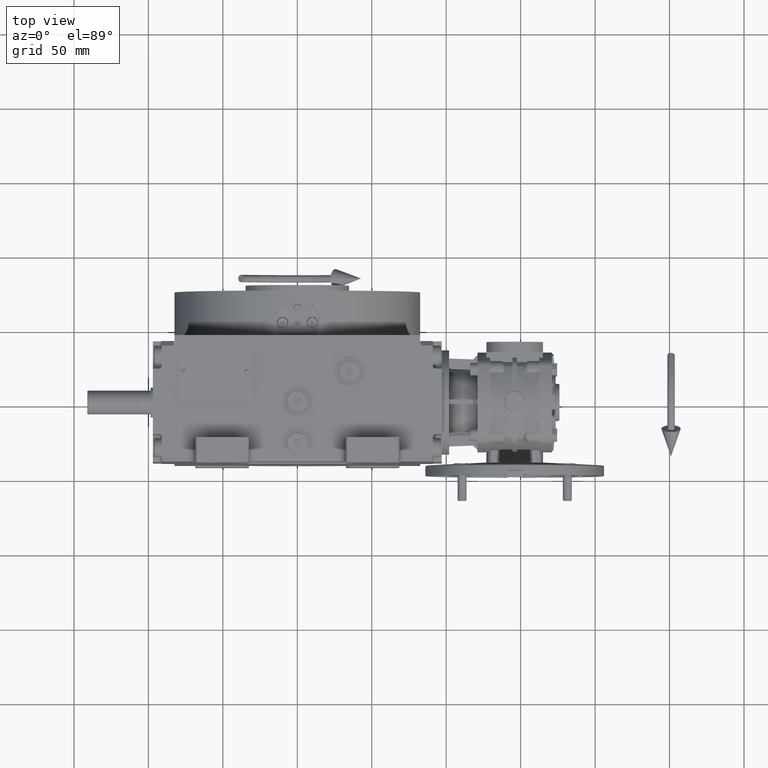
[diagram: clean part render]
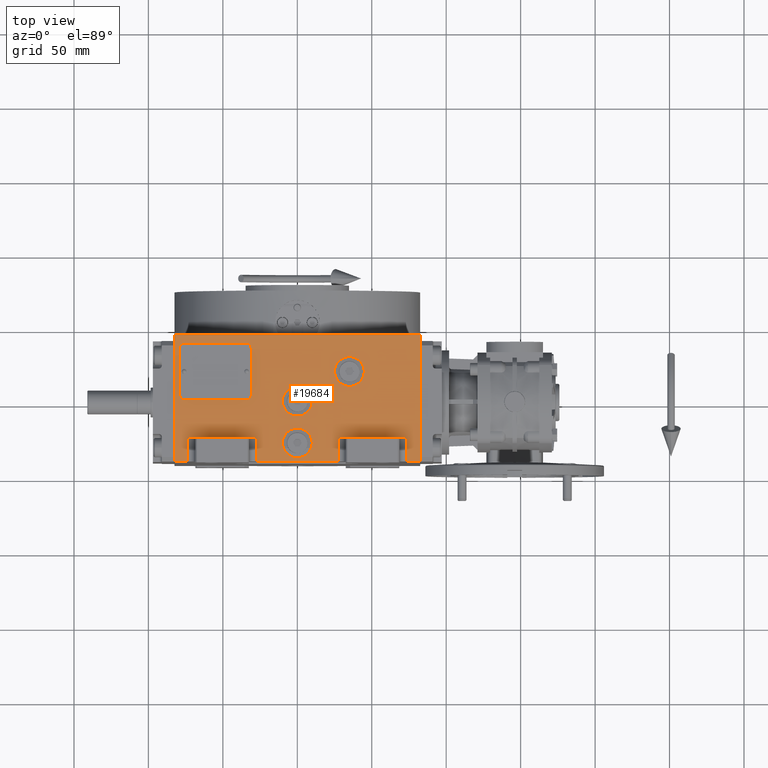
[diagram: same view with one face highlighted and labeled with its STEP entity id]
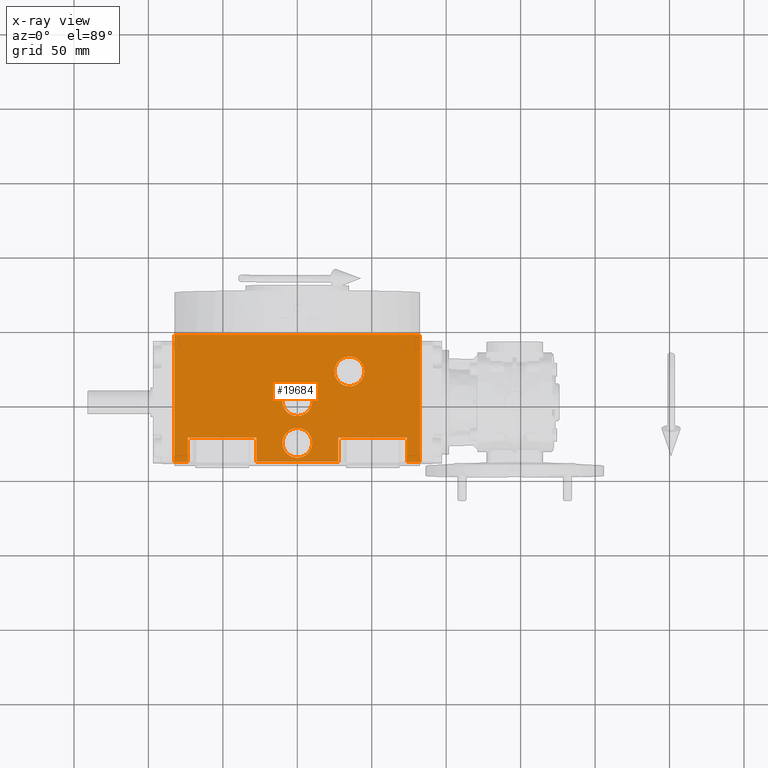
[diagram: x-ray of the same camera — body ghosted, the highlighted face saturated]
A machine part, top view. The second image highlights one B-rep face of the part: STEP entity #19684.
The next image is the same camera in x-ray: the body ghosted, the highlighted face saturated — about 0% of this face is hidden behind the body in this view.
In plain terms, the highlighted planar face has unit normal (0, 0, 1).
Its self-contained STEP definition (entity closure, byte-faithful):
#145 = EDGE_CURVE ( 'NONE', #74354, #4300, #1677, .T. ) ;
#854 = FACE_BOUND ( 'NONE', #50171, .T. ) ;
#1513 = CARTESIAN_POINT ( 'NONE',  ( -73.50000000000000000, -24.50000000000000000, 114.0000000000000000 ) ) ;
#1620 = DIRECTION ( 'NONE',  ( 0.000000000000000000, 1.000000000000000000, 0.000000000000000000 ) ) ;
#1677 = LINE ( 'NONE', #93088, #2878 ) ;
#1884 = EDGE_CURVE ( 'NONE', #30280, #95260, #39475, .T. ) ;
#1975 = ORIENTED_EDGE ( 'NONE', *, *, #86645, .T. ) ;
#2330 = CARTESIAN_POINT ( 'NONE',  ( 73.50000000000000000, -40.50000000000000000, 114.0000000000000000 ) ) ;
#2536 = CARTESIAN_POINT ( 'NONE',  ( 10.00000000000000000, -1.072081766451089851E-15, 114.0000000000000000 ) ) ;
#2878 = VECTOR ( 'NONE', #86659, 1000.000000000000000 ) ;
#2927 = EDGE_CURVE ( 'NONE', #30512, #56209, #3648, .T. ) ;
#2961 = LINE ( 'NONE', #9398, #57771 ) ;
#3648 = LINE ( 'NONE', #4623, #76831 ) ;
#4300 = VERTEX_POINT ( 'NONE', #31149 ) ;
#4623 = CARTESIAN_POINT ( 'NONE',  ( 73.50000000000000000, -40.50000000000000000, 114.0000000000000000 ) ) ;
#5507 = VECTOR ( 'NONE', #31658, 1000.000000000000000 ) ;
#6808 = ORIENTED_EDGE ( 'NONE', *, *, #90931, .F. ) ;
#7286 = CARTESIAN_POINT ( 'NONE',  ( 0.000000000000000000, -28.00000000000000000, 114.0000000000000000 ) ) ;
#7470 = LINE ( 'NONE', #37665, #71016 ) ;
#7536 = VERTEX_POINT ( 'NONE', #31584 ) ;
#8364 = DIRECTION ( 'NONE',  ( 0.000000000000000000, 0.000000000000000000, 1.000000000000000000 ) ) ;
#8905 = LINE ( 'NONE', #1513, #5507 ) ;
#9070 = CIRCLE ( 'NONE', #97503, 10.00000000000000000 ) ;
#9122 = VERTEX_POINT ( 'NONE', #2536 ) ;
#9398 = CARTESIAN_POINT ( 'NONE',  ( 27.49999999999934630, -24.50000000000000000, 114.0000000000000000 ) ) ;
#9956 = LINE ( 'NONE', #78654, #81301 ) ;
#10235 = CARTESIAN_POINT ( 'NONE',  ( 27.49999999999934630, -24.50000000000000000, 114.0000000000000000 ) ) ;
#11595 = LINE ( 'NONE', #12085, #57034 ) ;
#11804 = CARTESIAN_POINT ( 'NONE',  ( 0.000000000000000000, -8.881784197001250351E-16, 114.0000000000000000 ) ) ;
#12085 = CARTESIAN_POINT ( 'NONE',  ( -82.50000000000000000, 44.50000000000000000, 114.0000000000000000 ) ) ;
#12133 = VERTEX_POINT ( 'NONE', #77336 ) ;
#12497 = VECTOR ( 'NONE', #1620, 1000.000000000000000 ) ;
#13980 = CIRCLE ( 'NONE', #39297, 10.00000000000000178 ) ;
#14520 = EDGE_CURVE ( 'NONE', #7536, #40405, #11595, .T. ) ;
#15132 = CIRCLE ( 'NONE', #29393, 10.00000000000000000 ) ;
#16925 = CARTESIAN_POINT ( 'NONE',  ( 73.50000000000000000, -40.50000000000000000, 114.0000000000000000 ) ) ;
#18988 = ORIENTED_EDGE ( 'NONE', *, *, #23032, .F. ) ;
#19101 = CARTESIAN_POINT ( 'NONE',  ( 35.00000000000000000, 20.00000000000000000, 114.0000000000000000 ) ) ;
#19684 = ADVANCED_FACE ( 'NONE', ( #92263, #854, #24065, #61655 ), #53749, .T. ) ;
#20525 = ORIENTED_EDGE ( 'NONE', *, *, #65119, .T. ) ;
#20561 = EDGE_CURVE ( 'NONE', #88751, #7536, #9956, .T. ) ;
#21768 = VECTOR ( 'NONE', #53276, 1000.000000000000000 ) ;
#23032 = EDGE_CURVE ( 'NONE', #27347, #61440, #2961, .T. ) ;
#23119 = DIRECTION ( 'NONE',  ( 1.000000000000000000, 0.000000000000000000, 0.000000000000000000 ) ) ;
#24065 = FACE_BOUND ( 'NONE', #95943, .T. ) ;
#24245 = ORIENTED_EDGE ( 'NONE', *, *, #27132, .F. ) ;
#24431 = VERTEX_POINT ( 'NONE', #61947 ) ;
#25446 = VERTEX_POINT ( 'NONE', #90162 ) ;
#27132 = EDGE_CURVE ( 'NONE', #9122, #35884, #15132, .T. ) ;
#27309 = DIRECTION ( 'NONE',  ( -1.000000000000000000, -3.469446951953613696E-16, 0.000000000000000000 ) ) ;
#27347 = VERTEX_POINT ( 'NONE', #52381 ) ;
#27620 = DIRECTION ( 'NONE',  ( 0.000000000000000000, 0.000000000000000000, 1.000000000000000000 ) ) ;
#28608 = ORIENTED_EDGE ( 'NONE', *, *, #20561, .F. ) ;
#28834 = VECTOR ( 'NONE', #93281, 1000.000000000000000 ) ;
#28945 = EDGE_CURVE ( 'NONE', #12133, #96338, #9070, .T. ) ;
#29092 = EDGE_CURVE ( 'NONE', #24431, #4300, #60691, .T. ) ;
#29393 = AXIS2_PLACEMENT_3D ( 'NONE', #70755, #85551, #69781 ) ;
#30057 = CARTESIAN_POINT ( 'NONE',  ( -10.00000000000000000, -28.00000000000000000, 114.0000000000000000 ) ) ;
#30280 = VERTEX_POINT ( 'NONE', #50009 ) ;
#30512 = VERTEX_POINT ( 'NONE', #2330 ) ;
#31149 = CARTESIAN_POINT ( 'NONE',  ( -27.49999999999934630, -24.50000000000000000, 114.0000000000000000 ) ) ;
#31584 = CARTESIAN_POINT ( 'NONE',  ( -82.50000000000000000, 44.50000000000000000, 114.0000000000000000 ) ) ;
#31658 = DIRECTION ( 'NONE',  ( 0.000000000000000000, -1.000000000000000000, 0.000000000000000000 ) ) ;
#32711 = EDGE_CURVE ( 'NONE', #30512, #25446, #60460, .T. ) ;
#33660 = EDGE_CURVE ( 'NONE', #27347, #25446, #40427, .T. ) ;
#35163 = CARTESIAN_POINT ( 'NONE',  ( -27.49999999999934630, -40.50000000000000000, 114.0000000000000000 ) ) ;
#35884 = VERTEX_POINT ( 'NONE', #86460 ) ;
#35973 = ORIENTED_EDGE ( 'NONE', *, *, #37203, .F. ) ;
#36682 = CARTESIAN_POINT ( 'NONE',  ( 35.00000000000000000, 20.00000000000000000, 114.0000000000000000 ) ) ;
#37203 = EDGE_CURVE ( 'NONE', #35884, #9122, #95372, .T. ) ;
#37290 = CARTESIAN_POINT ( 'NONE',  ( -82.50000000000000000, -40.50000000000000000, 114.0000000000000000 ) ) ;
#37336 = CARTESIAN_POINT ( 'NONE',  ( -82.50000000000000000, -40.50000000000000000, 114.0000000000000000 ) ) ;
#37665 = CARTESIAN_POINT ( 'NONE',  ( 82.50000000000000000, -40.50000000000000000, 114.0000000000000000 ) ) ;
#39297 = AXIS2_PLACEMENT_3D ( 'NONE', #36682, #95037, #27309 ) ;
#39453 = CARTESIAN_POINT ( 'NONE',  ( 25.00000000000000000, 20.00000000000000000, 114.0000000000000000 ) ) ;
#39475 = CIRCLE ( 'NONE', #75753, 10.00000000000000178 ) ;
#39596 = DIRECTION ( 'NONE',  ( -8.881784197001250351E-16, -1.000000000000000000, 0.000000000000000000 ) ) ;
#39873 = ORIENTED_EDGE ( 'NONE', *, *, #29092, .F. ) ;
#40405 = VERTEX_POINT ( 'NONE', #94219 ) ;
#40427 = LINE ( 'NONE', #10235, #28834 ) ;
#40986 = EDGE_CURVE ( 'NONE', #96338, #12133, #63324, .T. ) ;
#41326 = ORIENTED_EDGE ( 'NONE', *, *, #58609, .T. ) ;
#41512 = DIRECTION ( 'NONE',  ( -1.000000000000000000, 8.881784197001247886E-17, 0.000000000000000000 ) ) ;
#43066 = DIRECTION ( 'NONE',  ( 1.000000000000000000, 0.000000000000000000, 0.000000000000000000 ) ) ;
#43253 = AXIS2_PLACEMENT_3D ( 'NONE', #84354, #46334, #83860 ) ;
#46334 = DIRECTION ( 'NONE',  ( 0.000000000000000000, 0.000000000000000000, 1.000000000000000000 ) ) ;
#46495 = AXIS2_PLACEMENT_3D ( 'NONE', #11804, #27620, #41512 ) ;
#50009 = CARTESIAN_POINT ( 'NONE',  ( 45.00000000000000000, 20.00000000000000000, 114.0000000000000000 ) ) ;
#50171 = EDGE_LOOP ( 'NONE', ( #24245, #35973 ) ) ;
#52105 = LINE ( 'NONE', #37290, #84896 ) ;
#52381 = CARTESIAN_POINT ( 'NONE',  ( 27.49999999999934630, -24.50000000000000000, 114.0000000000000000 ) ) ;
#53276 = DIRECTION ( 'NONE',  ( 0.000000000000000000, 1.000000000000000000, 0.000000000000000000 ) ) ;
#53749 = PLANE ( 'NONE',  #43253 ) ;
#56209 = VERTEX_POINT ( 'NONE', #86982 ) ;
#57034 = VECTOR ( 'NONE', #80289, 1000.000000000000000 ) ;
#57771 = VECTOR ( 'NONE', #39596, 1000.000000000000000 ) ;
#58605 = ORIENTED_EDGE ( 'NONE', *, *, #77575, .F. ) ;
#58609 = EDGE_CURVE ( 'NONE', #88751, #59924, #52105, .T. ) ;
#59849 = ORIENTED_EDGE ( 'NONE', *, *, #2927, .T. ) ;
#59924 = VERTEX_POINT ( 'NONE', #75325 ) ;
#59953 = DIRECTION ( 'NONE',  ( 0.000000000000000000, 0.000000000000000000, 1.000000000000000000 ) ) ;
#59989 = ORIENTED_EDGE ( 'NONE', *, *, #1884, .F. ) ;
#60431 = DIRECTION ( 'NONE',  ( -1.000000000000000000, -3.469446951953614189E-16, 0.000000000000000000 ) ) ;
#60460 = LINE ( 'NONE', #16925, #12497 ) ;
#60691 = LINE ( 'NONE', #90839, #21768 ) ;
#61378 = ORIENTED_EDGE ( 'NONE', *, *, #40986, .F. ) ;
#61440 = VERTEX_POINT ( 'NONE', #78426 ) ;
#61655 = FACE_OUTER_BOUND ( 'NONE', #75729, .T. ) ;
#61947 = CARTESIAN_POINT ( 'NONE',  ( -27.49999999999934630, -40.50000000000000000, 114.0000000000000000 ) ) ;
#63324 = CIRCLE ( 'NONE', #79119, 10.00000000000000000 ) ;
#64446 = DIRECTION ( 'NONE',  ( 1.000000000000000000, 0.000000000000000000, 0.000000000000000000 ) ) ;
#64825 = LINE ( 'NONE', #35163, #71982 ) ;
#65119 = EDGE_CURVE ( 'NONE', #56209, #40405, #7470, .T. ) ;
#66356 = ORIENTED_EDGE ( 'NONE', *, *, #28945, .F. ) ;
#67800 = DIRECTION ( 'NONE',  ( 0.000000000000000000, 1.000000000000000000, 0.000000000000000000 ) ) ;
#67849 = CARTESIAN_POINT ( 'NONE',  ( 0.000000000000000000, -28.00000000000000000, 114.0000000000000000 ) ) ;
#68408 = DIRECTION ( 'NONE',  ( 1.000000000000000000, 0.000000000000000000, 0.000000000000000000 ) ) ;
#68597 = DIRECTION ( 'NONE',  ( 0.000000000000000000, 0.000000000000000000, 1.000000000000000000 ) ) ;
#69781 = DIRECTION ( 'NONE',  ( 1.000000000000000000, -3.552713678800500140E-16, 0.000000000000000000 ) ) ;
#70755 = CARTESIAN_POINT ( 'NONE',  ( 0.000000000000000000, 3.552713678800499352E-15, 114.0000000000000000 ) ) ;
#71016 = VECTOR ( 'NONE', #67800, 1000.000000000000000 ) ;
#71982 = VECTOR ( 'NONE', #43066, 1000.000000000000000 ) ;
#73728 = EDGE_LOOP ( 'NONE', ( #66356, #61378 ) ) ;
#74354 = VERTEX_POINT ( 'NONE', #92015 ) ;
#75325 = CARTESIAN_POINT ( 'NONE',  ( -73.50000000000000000, -40.50000000000000000, 114.0000000000000000 ) ) ;
#75608 = DIRECTION ( 'NONE',  ( 1.000000000000000000, 3.469446951953613696E-16, 0.000000000000000000 ) ) ;
#75729 = EDGE_LOOP ( 'NONE', ( #96258, #88467, #59849, #20525, #94458, #28608, #41326, #6808, #96815, #39873, #1975, #18988 ) ) ;
#75753 = AXIS2_PLACEMENT_3D ( 'NONE', #19101, #8364, #75608 ) ;
#76831 = VECTOR ( 'NONE', #64446, 1000.000000000000000 ) ;
#77336 = CARTESIAN_POINT ( 'NONE',  ( 10.00000000000000000, -28.00000000000000000, 114.0000000000000000 ) ) ;
#77575 = EDGE_CURVE ( 'NONE', #95260, #30280, #13980, .T. ) ;
#78426 = CARTESIAN_POINT ( 'NONE',  ( 27.49999999999934630, -40.50000000000000000, 114.0000000000000000 ) ) ;
#78654 = CARTESIAN_POINT ( 'NONE',  ( -82.50000000000000000, -40.50000000000000000, 114.0000000000000000 ) ) ;
#79119 = AXIS2_PLACEMENT_3D ( 'NONE', #67849, #59953, #60431 ) ;
#80289 = DIRECTION ( 'NONE',  ( 1.000000000000000000, 0.000000000000000000, 0.000000000000000000 ) ) ;
#81301 = VECTOR ( 'NONE', #85569, 1000.000000000000000 ) ;
#83860 = DIRECTION ( 'NONE',  ( 1.000000000000000000, 0.000000000000000000, 0.000000000000000000 ) ) ;
#84354 = CARTESIAN_POINT ( 'NONE',  ( -82.50000000000000000, -40.50000000000000000, 114.0000000000000000 ) ) ;
#84896 = VECTOR ( 'NONE', #68408, 1000.000000000000000 ) ;
#85551 = DIRECTION ( 'NONE',  ( 0.000000000000000000, 0.000000000000000000, 1.000000000000000000 ) ) ;
#85569 = DIRECTION ( 'NONE',  ( 0.000000000000000000, 1.000000000000000000, 0.000000000000000000 ) ) ;
#86460 = CARTESIAN_POINT ( 'NONE',  ( -10.00000000000000000, 0.000000000000000000, 114.0000000000000000 ) ) ;
#86645 = EDGE_CURVE ( 'NONE', #24431, #61440, #64825, .T. ) ;
#86659 = DIRECTION ( 'NONE',  ( 1.000000000000000000, 0.000000000000000000, 0.000000000000000000 ) ) ;
#86982 = CARTESIAN_POINT ( 'NONE',  ( 82.50000000000000000, -40.50000000000000000, 114.0000000000000000 ) ) ;
#88467 = ORIENTED_EDGE ( 'NONE', *, *, #32711, .F. ) ;
#88751 = VERTEX_POINT ( 'NONE', #37336 ) ;
#90162 = CARTESIAN_POINT ( 'NONE',  ( 73.50000000000000000, -24.50000000000000000, 114.0000000000000000 ) ) ;
#90839 = CARTESIAN_POINT ( 'NONE',  ( -27.49999999999934630, -40.50000000000000000, 114.0000000000000000 ) ) ;
#90931 = EDGE_CURVE ( 'NONE', #74354, #59924, #8905, .T. ) ;
#92015 = CARTESIAN_POINT ( 'NONE',  ( -73.50000000000000000, -24.50000000000000000, 114.0000000000000000 ) ) ;
#92263 = FACE_BOUND ( 'NONE', #73728, .T. ) ;
#93088 = CARTESIAN_POINT ( 'NONE',  ( -73.50000000000000000, -24.50000000000000000, 114.0000000000000000 ) ) ;
#93281 = DIRECTION ( 'NONE',  ( 1.000000000000000000, 0.000000000000000000, 0.000000000000000000 ) ) ;
#94219 = CARTESIAN_POINT ( 'NONE',  ( 82.50000000000000000, 44.50000000000000000, 114.0000000000000000 ) ) ;
#94458 = ORIENTED_EDGE ( 'NONE', *, *, #14520, .F. ) ;
#95037 = DIRECTION ( 'NONE',  ( 0.000000000000000000, 0.000000000000000000, 1.000000000000000000 ) ) ;
#95260 = VERTEX_POINT ( 'NONE', #39453 ) ;
#95372 = CIRCLE ( 'NONE', #46495, 10.00000000000000000 ) ;
#95943 = EDGE_LOOP ( 'NONE', ( #59989, #58605 ) ) ;
#96258 = ORIENTED_EDGE ( 'NONE', *, *, #33660, .T. ) ;
#96338 = VERTEX_POINT ( 'NONE', #30057 ) ;
#96815 = ORIENTED_EDGE ( 'NONE', *, *, #145, .T. ) ;
#97503 = AXIS2_PLACEMENT_3D ( 'NONE', #7286, #68597, #23119 ) ;